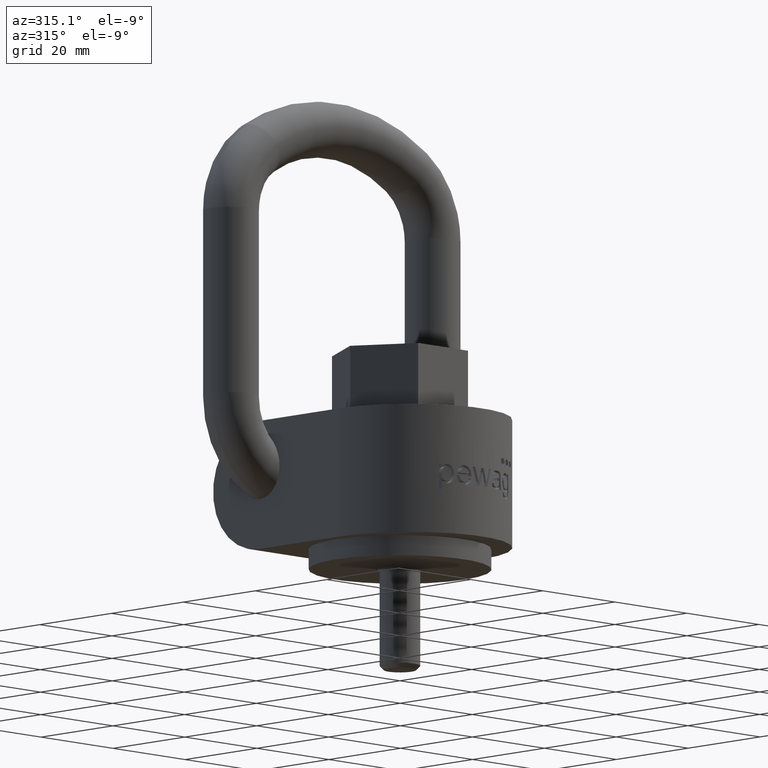
[diagram: clean part render]
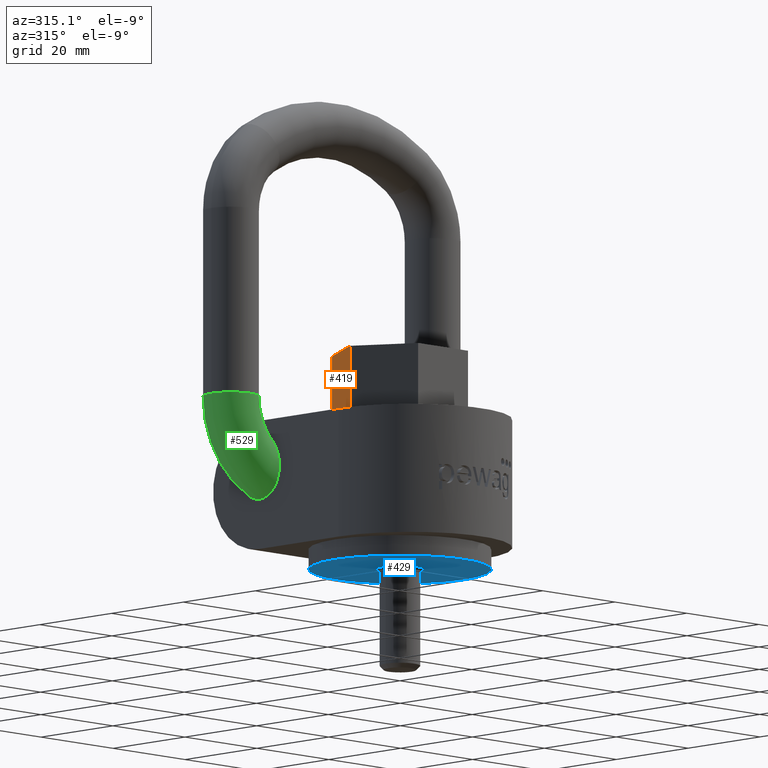
[diagram: same view with three faces highlighted in distinct colors, each labeled with its STEP entity id]
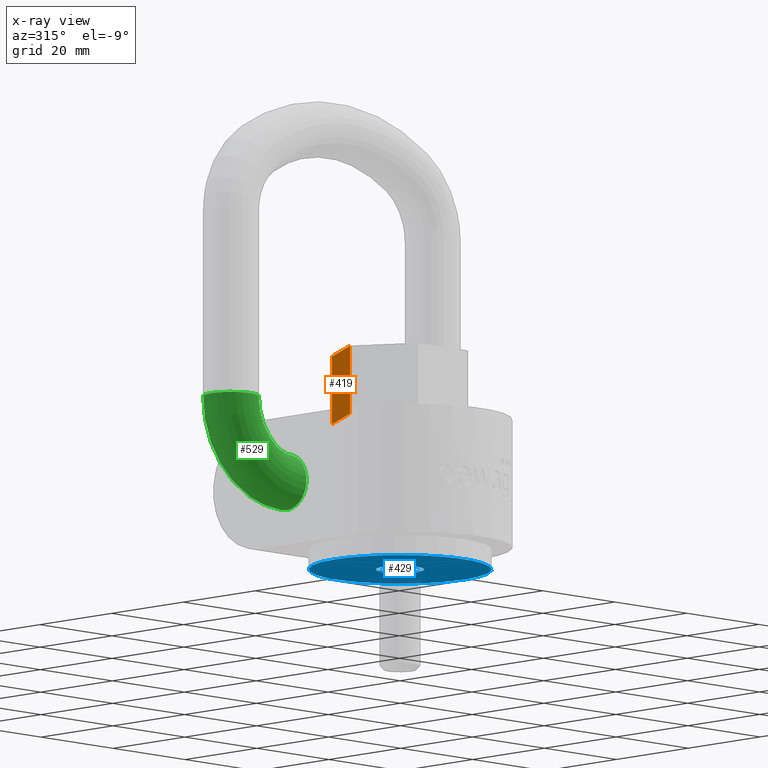
[diagram: x-ray of the same camera — body ghosted, the three highlighted faces saturated]
A machine part, auxiliary view with three faces highlighted in distinct colors.
The next image is the same camera in x-ray (body ghosted, the three faces saturated) — at least one of them is partly hidden behind the body in this view.
Their STEP definitions:

[orange] entity #419 — the highlighted planar face has unit normal (0.866, -0.5, 0).
#252=FACE_OUTER_BOUND('',#650,.T.);
#357=PLANE('',#2465);
#419=ADVANCED_FACE('',(#252),#357,.F.);
#650=EDGE_LOOP('',(#1244,#1245,#1246,#1247));
#800=LINE('',#3824,#926);
#807=LINE('',#3838,#933);
#814=LINE('',#3852,#940);
#816=LINE('',#3856,#942);
#926=VECTOR('',#2649,1.);
#933=VECTOR('',#2658,1.);
#940=VECTOR('',#2673,1.);
#942=VECTOR('',#2677,1.);
#1244=ORIENTED_EDGE('',*,*,#2023,.T.);
#1245=ORIENTED_EDGE('',*,*,#2030,.F.);
#1246=ORIENTED_EDGE('',*,*,#2039,.F.);
#1247=ORIENTED_EDGE('',*,*,#2037,.T.);
#1808=VERTEX_POINT('',#3822);
#1810=VERTEX_POINT('',#3825);
#1815=VERTEX_POINT('',#3837);
#1819=VERTEX_POINT('',#3853);
#2023=EDGE_CURVE('',#1810,#1808,#800,.T.);
#2030=EDGE_CURVE('',#1815,#1808,#807,.T.);
#2037=EDGE_CURVE('',#1819,#1810,#814,.T.);
#2039=EDGE_CURVE('',#1819,#1815,#816,.T.);
#2465=AXIS2_PLACEMENT_3D('',#3857,#2678,#2679);
#2649=DIRECTION('',(-0.5,-0.866025403784438,2.50385766456193E-16));
#2658=DIRECTION('',(0.,0.,-1.));
#2673=DIRECTION('',(0.,0.,-1.));
#2677=DIRECTION('',(-0.5,-0.866025403784438,2.50385766456193E-16));
#2678=DIRECTION('',(0.866025403784439,-0.5,0.));
#2679=DIRECTION('',(0.5,0.866025403784439,0.));
#3822=CARTESIAN_POINT('',(-13.856406460551,-8.88178419700125E-15,25.5));
#3824=CARTESIAN_POINT('',(-6.92820323027551,12.,25.5));
#3825=CARTESIAN_POINT('',(-6.92820323027551,12.,25.5));
#3837=CARTESIAN_POINT('',(-13.856406460551,-8.88178419700125E-15,39.));
#3838=CARTESIAN_POINT('',(-13.856406460551,-8.88178419700125E-15,39.));
#3852=CARTESIAN_POINT('',(-6.92820323027551,12.,39.));
#3853=CARTESIAN_POINT('',(-6.92820323027551,12.,39.));
#3856=CARTESIAN_POINT('',(-6.92820323027551,12.,39.));
#3857=CARTESIAN_POINT('',(-6.92820323027551,12.,39.));

[blue] entity #429 — the highlighted planar face has unit normal (0, 0, -1).
#366=PLANE('',#2477);
#429=ADVANCED_FACE('',(#587,#588),#366,.T.);
#587=FACE_BOUND('',#662,.T.);
#588=FACE_BOUND('',#663,.T.);
#662=EDGE_LOOP('',(#1292));
#663=EDGE_LOOP('',(#1293));
#1106=CIRCLE('',#2474,18.);
#1107=CIRCLE('',#2476,4.8);
#1292=ORIENTED_EDGE('',*,*,#2059,.T.);
#1293=ORIENTED_EDGE('',*,*,#2058,.T.);
#1832=VERTEX_POINT('',#3897);
#1833=VERTEX_POINT('',#3900);
#2058=EDGE_CURVE('',#1832,#1832,#1106,.T.);
#2059=EDGE_CURVE('',#1833,#1833,#1107,.T.);
#2474=AXIS2_PLACEMENT_3D('',#3896,#2714,#2715);
#2476=AXIS2_PLACEMENT_3D('',#3899,#2718,#2719);
#2477=AXIS2_PLACEMENT_3D('',#3901,#2720,#2721);
#2714=DIRECTION('',(0.,0.,-1.));
#2715=DIRECTION('',(1.,1.22464679914735E-16,0.));
#2718=DIRECTION('',(0.,0.,1.));
#2719=DIRECTION('',(-1.,0.,0.));
#2720=DIRECTION('',(0.,0.,-1.));
#2721=DIRECTION('',(-1.,0.,0.));
#3896=CARTESIAN_POINT('',(0.,0.,-3.99999999999993));
#3897=CARTESIAN_POINT('',(18.,2.20436423846524E-15,-3.99999999999993));
#3899=CARTESIAN_POINT('',(0.,0.,-3.99999999999993));
#3900=CARTESIAN_POINT('',(-4.8,0.,-3.99999999999993));
#3901=CARTESIAN_POINT('',(0.,0.,-3.99999999999993));

[green] entity #529 — the highlighted toroidal blend (fillet) surface has major radius 15.5 mm and minor (blend) radius 5.5 mm.
#240=TOROIDAL_SURFACE('',#2540,15.5,5.5);
#529=ADVANCED_FACE('',(#613,#614),#240,.T.);
#613=FACE_BOUND('',#775,.T.);
#614=FACE_BOUND('',#776,.T.);
#775=EDGE_LOOP('',(#1716));
#776=EDGE_LOOP('',(#1717));
#1114=CIRCLE('',#2537,5.5);
#1115=CIRCLE('',#2539,5.5);
#1716=ORIENTED_EDGE('',*,*,#2237,.T.);
#1717=ORIENTED_EDGE('',*,*,#2236,.F.);
#1932=VERTEX_POINT('',#5184);
#1933=VERTEX_POINT('',#5187);
#2236=EDGE_CURVE('',#1932,#1932,#1114,.T.);
#2237=EDGE_CURVE('',#1933,#1933,#1115,.T.);
#2537=AXIS2_PLACEMENT_3D('',#5183,#2963,#2964);
#2539=AXIS2_PLACEMENT_3D('',#5186,#2967,#2968);
#2540=AXIS2_PLACEMENT_3D('',#5188,#2969,#2970);
#2963=DIRECTION('',(1.,0.,-1.72254642419883E-16));
#2964=DIRECTION('',(-3.1540426835942E-16,0.,-1.));
#2967=DIRECTION('',(3.33066907387547E-16,0.,-1.));
#2968=DIRECTION('',(-1.,0.,-6.30808536718839E-16));
#2969=DIRECTION('',(0.,-1.,0.));
#2970=DIRECTION('',(0.,0.,-1.));
#5183=CARTESIAN_POINT('',(-12.5,19.,14.));
#5184=CARTESIAN_POINT('',(-12.5,19.,8.5));
#5186=CARTESIAN_POINT('',(-28.,19.,29.5));
#5187=CARTESIAN_POINT('',(-33.5,19.,29.5));
#5188=CARTESIAN_POINT('',(-12.5,19.,29.5));